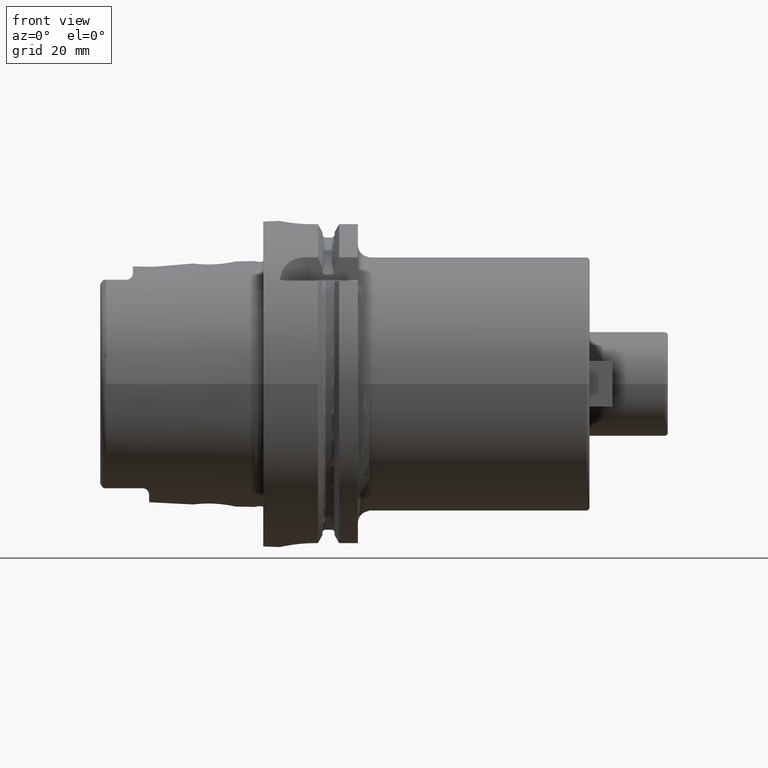
[diagram: clean part render]
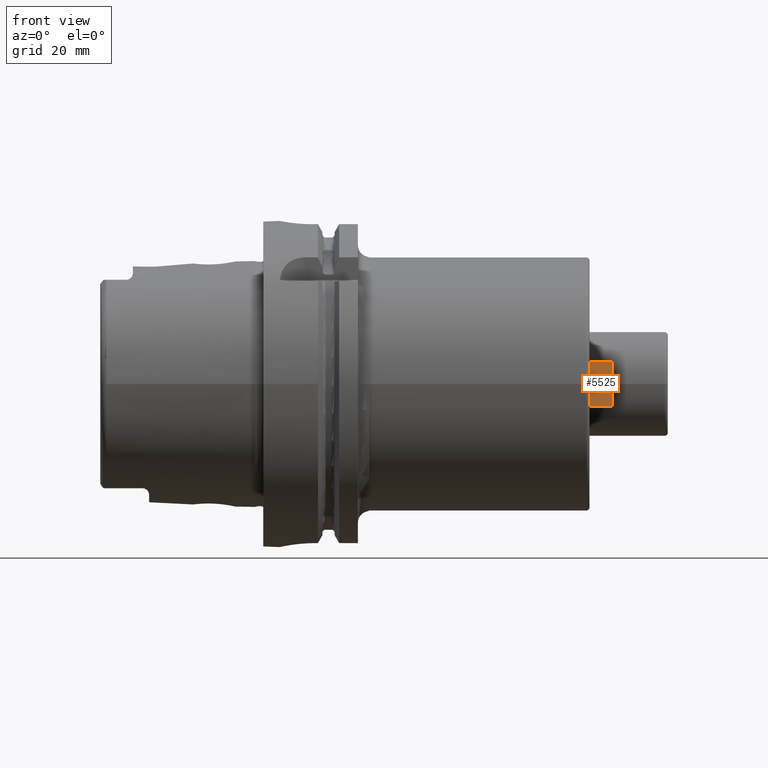
[diagram: same view with one face highlighted and labeled with its STEP entity id]
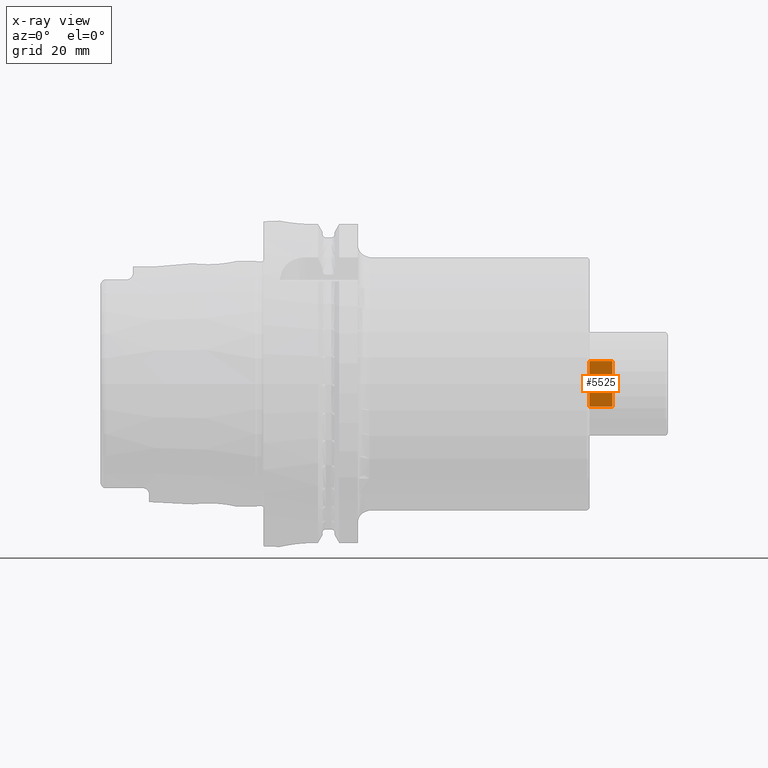
[diagram: x-ray of the same camera — body ghosted, the highlighted face saturated]
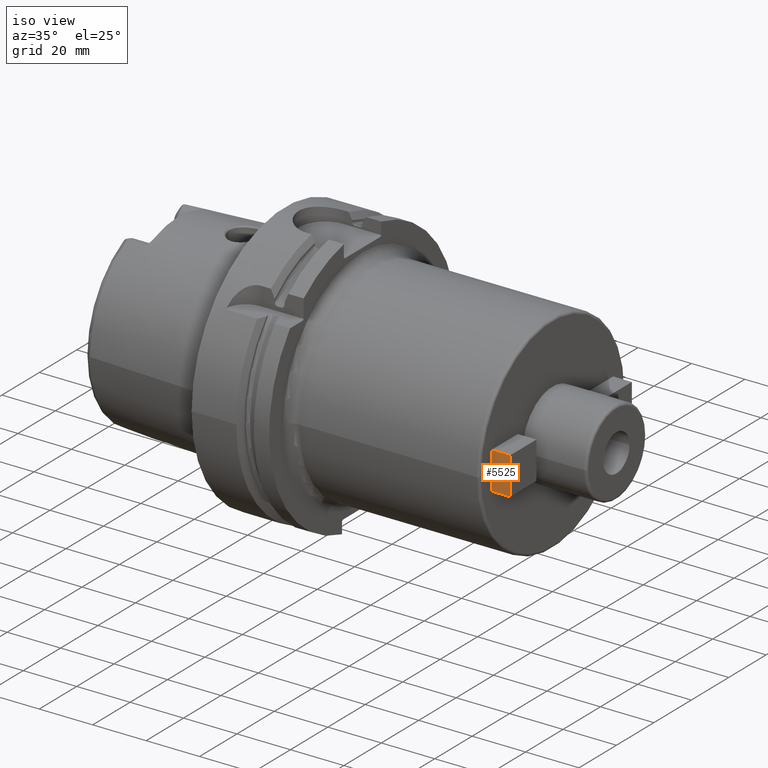
[diagram: same view with one face highlighted and labeled with its STEP entity id]
A machine part, front view. The second image highlights one B-rep face of the part: STEP entity #5525.
The next image is the same camera in x-ray: the body ghosted, the highlighted face saturated — about 0% of this face is hidden behind the body in this view.
A second angle (iso view) of the same face is appended — the face is thin or edge-on in the first view.
In plain terms, the highlighted planar face has unit normal (0, -1, 0).
Its self-contained STEP definition (entity closure, byte-faithful):
#1898=DIRECTION('',(0.E0,0.E0,-1.E0));
#1899=VECTOR('',#1898,1.4E1);
#1900=CARTESIAN_POINT('',(1.E2,-3.25E1,7.E0));
#1901=LINE('',#1900,#1899);
#2028=DIRECTION('',(0.E0,0.E0,-1.E0));
#2029=VECTOR('',#2028,1.4E1);
#2030=CARTESIAN_POINT('',(1.07E2,-3.25E1,7.E0));
#2031=LINE('',#2030,#2029);
#2040=DIRECTION('',(1.E0,0.E0,0.E0));
#2041=VECTOR('',#2040,7.E0);
#2042=CARTESIAN_POINT('',(1.E2,-3.25E1,-7.E0));
#2043=LINE('',#2042,#2041);
#2044=DIRECTION('',(1.E0,0.E0,0.E0));
#2045=VECTOR('',#2044,7.E0);
#2046=CARTESIAN_POINT('',(1.E2,-3.25E1,7.E0));
#2047=LINE('',#2046,#2045);
#3306=CARTESIAN_POINT('',(1.07E2,-3.25E1,7.E0));
#3308=VERTEX_POINT('',#3306);
#3309=CARTESIAN_POINT('',(1.07E2,-3.25E1,-7.E0));
#3310=VERTEX_POINT('',#3309);
#3322=CARTESIAN_POINT('',(1.E2,-3.25E1,7.E0));
#3324=VERTEX_POINT('',#3322);
#3325=CARTESIAN_POINT('',(1.E2,-3.25E1,-7.E0));
#3326=VERTEX_POINT('',#3325);
#5514=CARTESIAN_POINT('',(1.E2,-3.25E1,7.E0));
#5515=DIRECTION('',(0.E0,-1.E0,0.E0));
#5516=DIRECTION('',(0.E0,0.E0,-1.E0));
#5517=AXIS2_PLACEMENT_3D('',#5514,#5515,#5516);
#5518=PLANE('',#5517);
#5519=ORIENTED_EDGE('',*,*,#5257,.F.);
#5520=ORIENTED_EDGE('',*,*,#5483,.T.);
#5521=ORIENTED_EDGE('',*,*,#5469,.T.);
#5522=ORIENTED_EDGE('',*,*,#5507,.F.);
#5523=EDGE_LOOP('',(#5519,#5520,#5521,#5522));
#5524=FACE_OUTER_BOUND('',#5523,.F.);
#5525=ADVANCED_FACE('',(#5524),#5518,.T.);
#5257=EDGE_CURVE('',#3324,#3326,#1901,.T.);
#5469=EDGE_CURVE('',#3308,#3310,#2031,.T.);
#5483=EDGE_CURVE('',#3324,#3308,#2047,.T.);
#5507=EDGE_CURVE('',#3326,#3310,#2043,.T.);